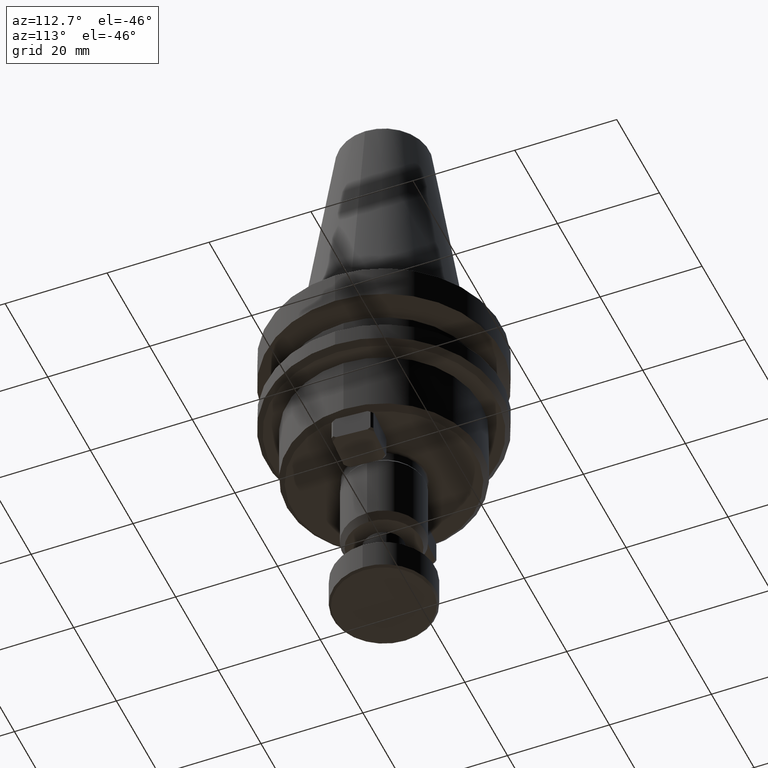
[diagram: clean part render]
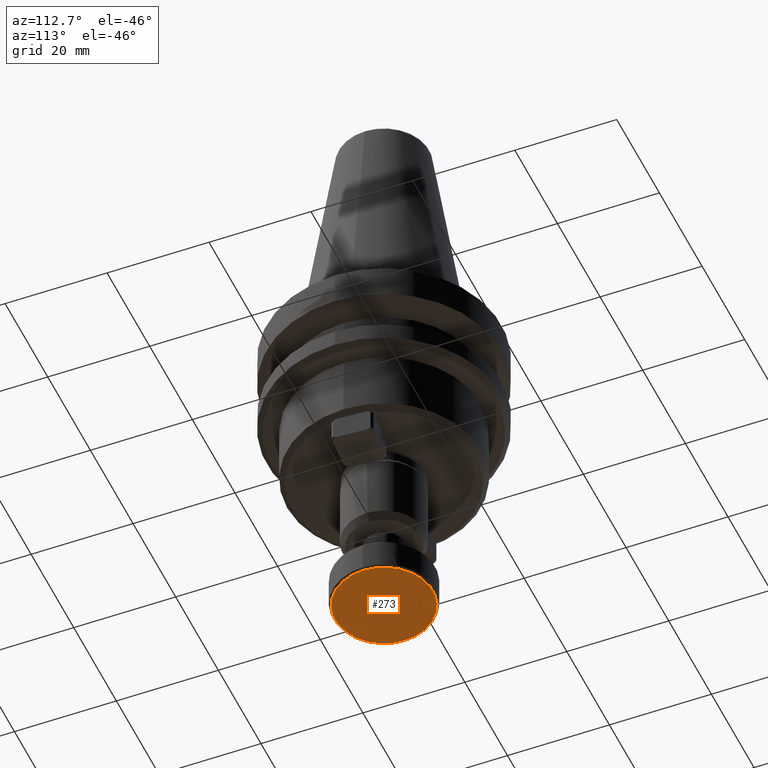
[diagram: same view with one face highlighted and labeled with its STEP entity id]
A machine part, auxiliary view. The second image highlights one B-rep face of the part: STEP entity #273.
In plain terms, the highlighted planar face has unit normal (0, 0, 1).
Its self-contained STEP definition (entity closure, byte-faithful):
#57 = EDGE_CURVE ( 'NONE', #3347, #2222, #2952, .T. ) ;
#273 = ADVANCED_FACE ( 'NONE', ( #2238 ), #1388, .F. ) ;
#434 = AXIS2_PLACEMENT_3D ( 'NONE', #2951, #1741, #2303 ) ;
#635 = CARTESIAN_POINT ( 'NONE',  ( 41.69949667897864700, 53.21725052380196500, 9.078080181290273400 ) ) ;
#1388 = PLANE ( 'NONE',  #434 ) ;
#1545 = CIRCLE ( 'NONE', #2888, 9.599999999999941000 ) ;
#1590 = AXIS2_PLACEMENT_3D ( 'NONE', #2087, #3362, #2727 ) ;
#1741 = DIRECTION ( 'NONE',  ( 1.987432607023972400E-016, 1.683410023859891200E-016, 1.000000000000000000 ) ) ;
#1784 = DIRECTION ( 'NONE',  ( 4.513101726118517000E-016, -0.0000000000000000000, -1.000000000000000000 ) ) ;
#2087 = CARTESIAN_POINT ( 'NONE',  ( 41.69949667897864700, 53.21725052380196500, 9.078080181290273400 ) ) ;
#2216 = EDGE_LOOP ( 'NONE', ( #2480, #2675 ) ) ;
#2222 = VERTEX_POINT ( 'NONE', #2457 ) ;
#2238 = FACE_OUTER_BOUND ( 'NONE', #2216, .T. ) ;
#2303 = DIRECTION ( 'NONE',  ( -0.4781075118440847900, 0.8783013190917217100, -5.283347858263350400E-017 ) ) ;
#2457 = CARTESIAN_POINT ( 'NONE',  ( 32.09949667897870300, 53.21725052380196500, 9.078080181290269800 ) ) ;
#2480 = ORIENTED_EDGE ( 'NONE', *, *, #57, .T. ) ;
#2614 = DIRECTION ( 'NONE',  ( -1.000000000000000000, 0.0000000000000000000, -3.614007241618370500E-016 ) ) ;
#2675 = ORIENTED_EDGE ( 'NONE', *, *, #2945, .T. ) ;
#2727 = DIRECTION ( 'NONE',  ( -1.000000000000000000, 0.0000000000000000000, -3.614007241618370500E-016 ) ) ;
#2839 = CARTESIAN_POINT ( 'NONE',  ( 51.29949667897859200, 53.21725052380196500, 9.078080181290276900 ) ) ;
#2888 = AXIS2_PLACEMENT_3D ( 'NONE', #635, #1784, #2614 ) ;
#2945 = EDGE_CURVE ( 'NONE', #2222, #3347, #1545, .T. ) ;
#2951 = CARTESIAN_POINT ( 'NONE',  ( 48.90609679774057400, 51.09102082589527100, 9.078080181290335600 ) ) ;
#2952 = CIRCLE ( 'NONE', #1590, 9.599999999999941000 ) ;
#3347 = VERTEX_POINT ( 'NONE', #2839 ) ;
#3362 = DIRECTION ( 'NONE',  ( 4.513101726118517000E-016, -0.0000000000000000000, -1.000000000000000000 ) ) ;